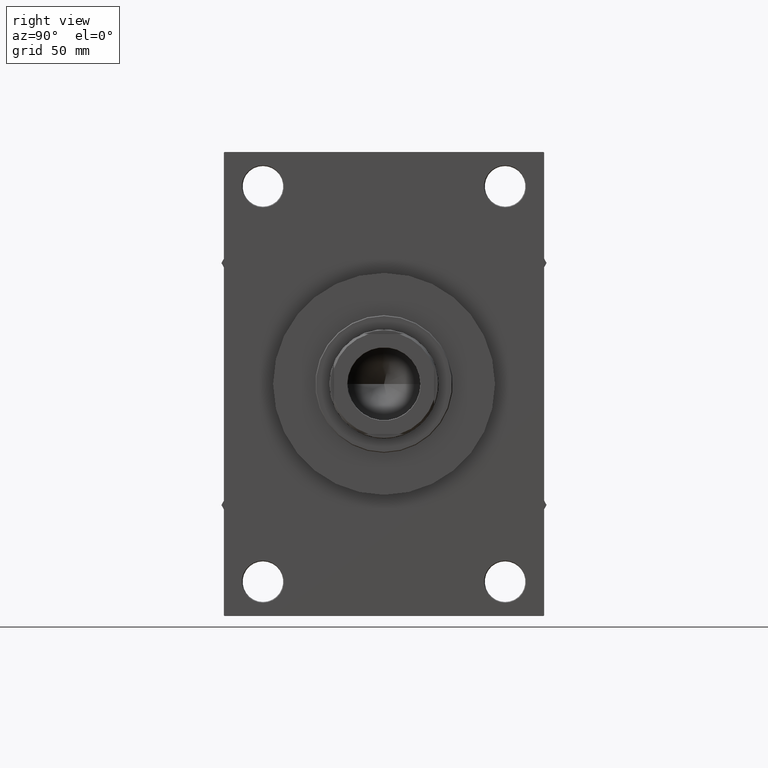
[diagram: clean part render]
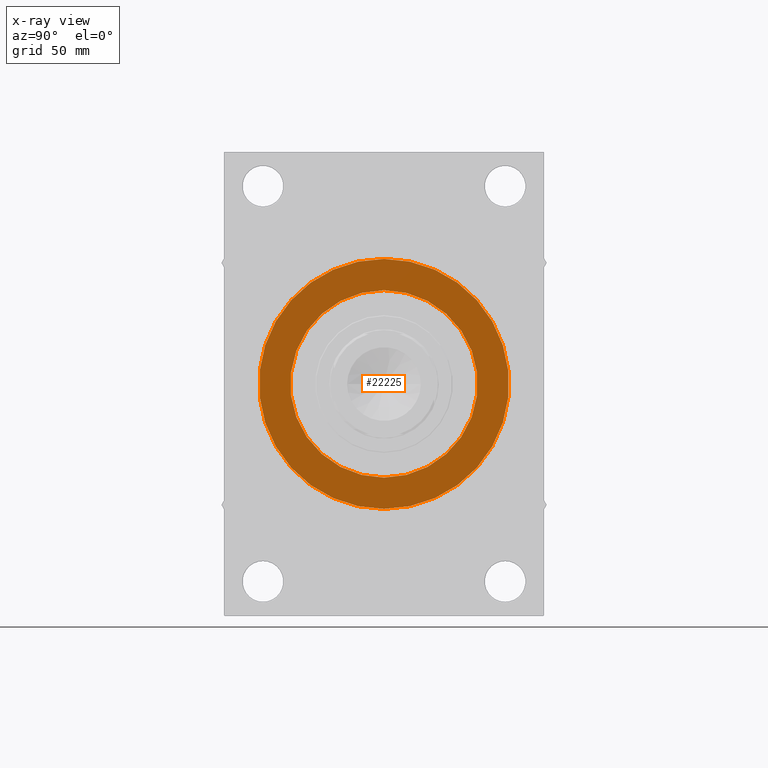
[diagram: x-ray — body ghosted, one internal face saturated and labeled with its STEP entity id]
A machine part, right view, then the same camera in x-ray: the body is ghosted and one INTERNAL B-rep face — a face not visible from any outside direction — is saturated and labeled: STEP entity #22225.
In plain terms, the highlighted planar face has unit normal (-1, 0, 0).
Its self-contained STEP definition (entity closure, byte-faithful):
#1470 = CARTESIAN_POINT ( 'NONE',  ( 150.0000000000000000, -2.602085213965210642E-15, 80.00000000000000000 ) ) ;
#4314 = AXIS2_PLACEMENT_3D ( 'NONE', #9836, #6211, #45765 ) ;
#6211 = DIRECTION ( 'NONE',  ( -1.000000000000000000, 0.000000000000000000, -0.000000000000000000 ) ) ;
#7537 = ORIENTED_EDGE ( 'NONE', *, *, #14454, .F. ) ;
#7706 = AXIS2_PLACEMENT_3D ( 'NONE', #28097, #43260, #35779 ) ;
#7758 = CARTESIAN_POINT ( 'NONE',  ( 150.0000000000000000, 7.195089179213615410E-15, -80.00000000000000000 ) ) ;
#8860 = ORIENTED_EDGE ( 'NONE', *, *, #32477, .F. ) ;
#9836 = CARTESIAN_POINT ( 'NONE',  ( 150.0000000000000000, 0.000000000000000000, 0.000000000000000000 ) ) ;
#10295 = DIRECTION ( 'NONE',  ( 1.000000000000000000, 0.000000000000000000, 0.000000000000000000 ) ) ;
#11000 = CARTESIAN_POINT ( 'NONE',  ( 150.0000000000000000, -2.602085213965210642E-15, 0.000000000000000000 ) ) ;
#11583 = FACE_OUTER_BOUND ( 'NONE', #29154, .T. ) ;
#13970 = DIRECTION ( 'NONE',  ( 0.000000000000000000, 0.000000000000000000, 1.000000000000000000 ) ) ;
#14454 = EDGE_CURVE ( 'NONE', #18090, #29789, #27600, .T. ) ;
#15146 = AXIS2_PLACEMENT_3D ( 'NONE', #11000, #10295, #29583 ) ;
#15178 = CIRCLE ( 'NONE', #15146, 80.00000000000000000 ) ;
#15215 = FACE_BOUND ( 'NONE', #38074, .T. ) ;
#18090 = VERTEX_POINT ( 'NONE', #44697 ) ;
#19110 = VERTEX_POINT ( 'NONE', #7758 ) ;
#20371 = EDGE_CURVE ( 'NONE', #29789, #18090, #25903, .T. ) ;
#21930 = DIRECTION ( 'NONE',  ( -1.000000000000000000, 0.000000000000000000, -0.000000000000000000 ) ) ;
#22225 = ADVANCED_FACE ( 'NONE', ( #15215, #11583 ), #27039, .T. ) ;
#25519 = EDGE_CURVE ( 'NONE', #32942, #19110, #15178, .T. ) ;
#25903 = CIRCLE ( 'NONE', #4314, 60.00000000000000000 ) ;
#27039 = PLANE ( 'NONE',  #40596 ) ;
#27600 = CIRCLE ( 'NONE', #36042, 60.00000000000000000 ) ;
#27754 = CARTESIAN_POINT ( 'NONE',  ( 150.0000000000000000, 7.347880794884118356E-15, 60.00000000000000000 ) ) ;
#28097 = CARTESIAN_POINT ( 'NONE',  ( 150.0000000000000000, -2.602085213965210642E-15, 0.000000000000000000 ) ) ;
#29154 = EDGE_LOOP ( 'NONE', ( #31770, #8860 ) ) ;
#29583 = DIRECTION ( 'NONE',  ( 0.000000000000000000, 0.000000000000000000, -1.000000000000000000 ) ) ;
#29789 = VERTEX_POINT ( 'NONE', #27754 ) ;
#31770 = ORIENTED_EDGE ( 'NONE', *, *, #25519, .F. ) ;
#32477 = EDGE_CURVE ( 'NONE', #19110, #32942, #40821, .T. ) ;
#32942 = VERTEX_POINT ( 'NONE', #1470 ) ;
#35754 = ORIENTED_EDGE ( 'NONE', *, *, #20371, .F. ) ;
#35779 = DIRECTION ( 'NONE',  ( 0.000000000000000000, 0.000000000000000000, -1.000000000000000000 ) ) ;
#36042 = AXIS2_PLACEMENT_3D ( 'NONE', #40247, #21930, #13970 ) ;
#38074 = EDGE_LOOP ( 'NONE', ( #7537, #35754 ) ) ;
#40247 = CARTESIAN_POINT ( 'NONE',  ( 150.0000000000000000, 0.000000000000000000, 0.000000000000000000 ) ) ;
#40596 = AXIS2_PLACEMENT_3D ( 'NONE', #44863, #41253, #41741 ) ;
#40821 = CIRCLE ( 'NONE', #7706, 80.00000000000000000 ) ;
#41253 = DIRECTION ( 'NONE',  ( -1.000000000000000000, 0.000000000000000000, -0.000000000000000000 ) ) ;
#41741 = DIRECTION ( 'NONE',  ( -0.000000000000000000, 0.000000000000000000, 1.000000000000000000 ) ) ;
#43260 = DIRECTION ( 'NONE',  ( 1.000000000000000000, 0.000000000000000000, 0.000000000000000000 ) ) ;
#44697 = CARTESIAN_POINT ( 'NONE',  ( 150.0000000000000000, 0.000000000000000000, -60.00000000000000000 ) ) ;
#44863 = CARTESIAN_POINT ( 'NONE',  ( 150.0000000000000000, 0.000000000000000000, 0.000000000000000000 ) ) ;
#45765 = DIRECTION ( 'NONE',  ( 0.000000000000000000, 0.000000000000000000, 1.000000000000000000 ) ) ;